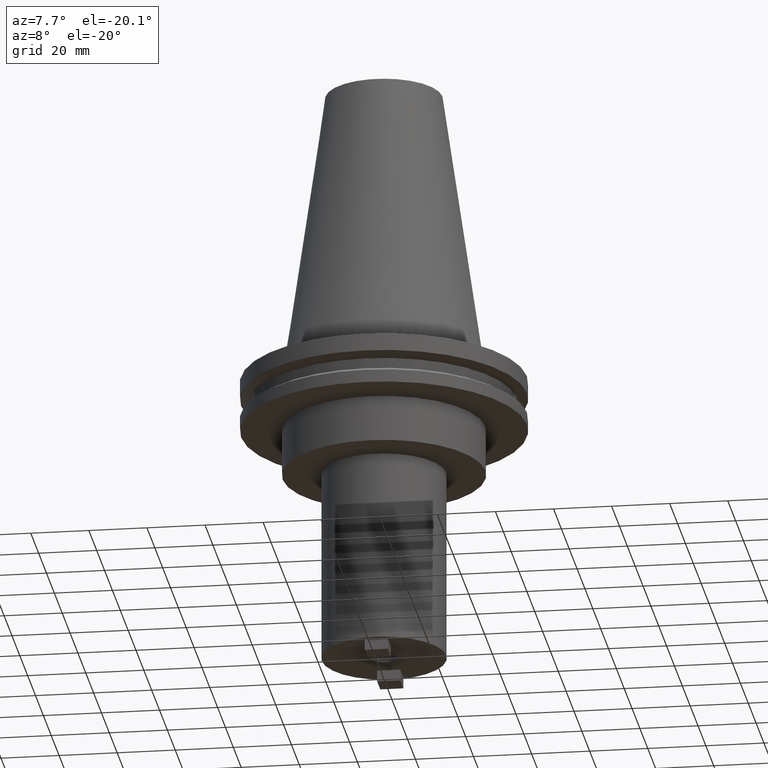
[diagram: clean part render]
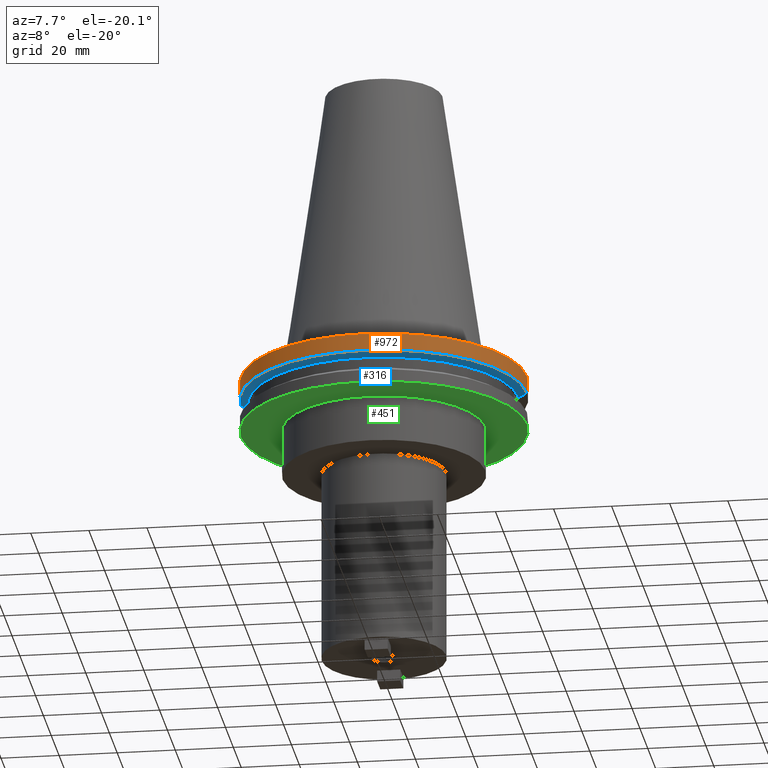
[diagram: same view with three faces highlighted in distinct colors, each labeled with its STEP entity id]
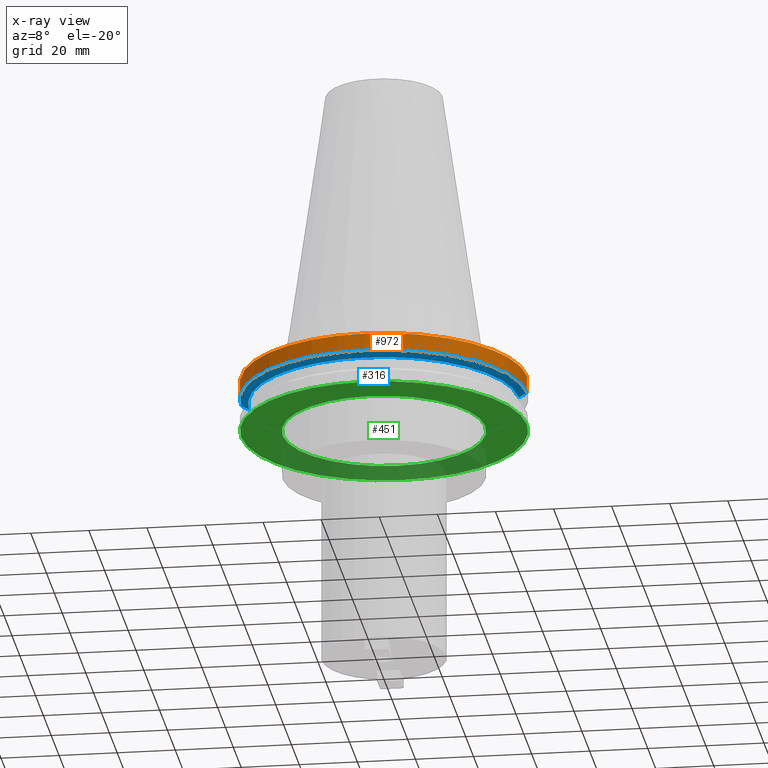
[diagram: x-ray of the same camera — body ghosted, the three highlighted faces saturated]
A machine part, auxiliary view with three faces highlighted in distinct colors.
The next image is the same camera in x-ray (body ghosted, the three faces saturated) — at least one of them is partly hidden behind the body in this view.
Their STEP definitions:

[orange] entity #972 — the highlighted cylindrical surface (partial cylindrical patch) has radius 49.215 mm, axis along (-0, -0, 1).
#8 = VERTEX_POINT ( 'NONE', #622 ) ;
#49 = ORIENTED_EDGE ( 'NONE', *, *, #811, .T. ) ;
#67 = ORIENTED_EDGE ( 'NONE', *, *, #574, .F. ) ;
#104 = AXIS2_PLACEMENT_3D ( 'NONE', #1079, #330, #313 ) ;
#135 = EDGE_CURVE ( 'NONE', #969, #181, #384, .T. ) ;
#175 = CIRCLE ( 'NONE', #833, 49.21500000000000341 ) ;
#181 = VERTEX_POINT ( 'NONE', #332 ) ;
#188 = ORIENTED_EDGE ( 'NONE', *, *, #711, .T. ) ;
#196 = DIRECTION ( 'NONE',  ( -0.000000000000000000, -0.000000000000000000, 1.000000000000000000 ) ) ;
#200 = LINE ( 'NONE', #542, #1037 ) ;
#205 = CARTESIAN_POINT ( 'NONE',  ( 0.000000000000000000, 0.000000000000000000, -7.602389855251287187 ) ) ;
#249 = EDGE_LOOP ( 'NONE', ( #67, #188, #49, #396 ) ) ;
#297 = DIRECTION ( 'NONE',  ( 1.000000000000000000, 0.000000000000000000, 0.000000000000000000 ) ) ;
#313 = DIRECTION ( 'NONE',  ( 1.000000000000000000, 0.000000000000000000, 0.000000000000000000 ) ) ;
#320 = DIRECTION ( 'NONE',  ( 1.000000000000000000, 0.000000000000000000, 0.000000000000000000 ) ) ;
#326 = CARTESIAN_POINT ( 'NONE',  ( -49.21500000000000341, 6.027099222003699404E-15, -7.602389855251287187 ) ) ;
#330 = DIRECTION ( 'NONE',  ( -0.000000000000000000, -0.000000000000000000, 1.000000000000000000 ) ) ;
#332 = CARTESIAN_POINT ( 'NONE',  ( 49.21499999999999631, 0.000000000000000000, -1.499999999999987566 ) ) ;
#372 = DIRECTION ( 'NONE',  ( -0.000000000000000000, -0.000000000000000000, 1.000000000000000000 ) ) ;
#384 = CIRCLE ( 'NONE', #743, 49.21499999999999631 ) ;
#396 = ORIENTED_EDGE ( 'NONE', *, *, #135, .F. ) ;
#421 = DIRECTION ( 'NONE',  ( -0.000000000000000000, -0.000000000000000000, 1.000000000000000000 ) ) ;
#489 = FACE_OUTER_BOUND ( 'NONE', #249, .T. ) ;
#542 = CARTESIAN_POINT ( 'NONE',  ( 49.21499999999999631, 0.000000000000000000, 101.5999999999999943 ) ) ;
#574 = EDGE_CURVE ( 'NONE', #912, #969, #1069, .T. ) ;
#622 = CARTESIAN_POINT ( 'NONE',  ( 49.21500000000000341, 0.000000000000000000, -7.602389855251287187 ) ) ;
#637 = VECTOR ( 'NONE', #748, 1000.000000000000000 ) ;
#711 = EDGE_CURVE ( 'NONE', #912, #8, #175, .T. ) ;
#743 = AXIS2_PLACEMENT_3D ( 'NONE', #1068, #421, #320 ) ;
#748 = DIRECTION ( 'NONE',  ( -0.000000000000000000, -0.000000000000000000, 1.000000000000000000 ) ) ;
#761 = CARTESIAN_POINT ( 'NONE',  ( -49.21499999999999631, 6.027099222003697826E-15, -1.499999999999987566 ) ) ;
#811 = EDGE_CURVE ( 'NONE', #8, #181, #200, .T. ) ;
#832 = CYLINDRICAL_SURFACE ( 'NONE', #104, 49.21499999999999631 ) ;
#833 = AXIS2_PLACEMENT_3D ( 'NONE', #205, #372, #297 ) ;
#912 = VERTEX_POINT ( 'NONE', #326 ) ;
#969 = VERTEX_POINT ( 'NONE', #761 ) ;
#972 = ADVANCED_FACE ( 'NONE', ( #489 ), #832, .T. ) ;
#977 = CARTESIAN_POINT ( 'NONE',  ( -49.21499999999999631, 6.027099222003697826E-15, 101.5999999999999943 ) ) ;
#1037 = VECTOR ( 'NONE', #196, 1000.000000000000000 ) ;
#1068 = CARTESIAN_POINT ( 'NONE',  ( 0.000000000000000000, 0.000000000000000000, -1.499999999999987566 ) ) ;
#1069 = LINE ( 'NONE', #977, #637 ) ;
#1079 = CARTESIAN_POINT ( 'NONE',  ( 0.000000000000000000, 0.000000000000000000, 101.5999999999999943 ) ) ;

[blue] entity #316 — the highlighted conical surface has half-angle 60 deg.
#2 = DIRECTION ( 'NONE',  ( 0.8660254037844273833, 0.000000000000000000, 0.5000000000000195399 ) ) ;
#8 = VERTEX_POINT ( 'NONE', #622 ) ;
#36 = DIRECTION ( 'NONE',  ( -0.000000000000000000, -0.000000000000000000, 1.000000000000000000 ) ) ;
#89 = EDGE_CURVE ( 'NONE', #595, #912, #481, .T. ) ;
#110 = CARTESIAN_POINT ( 'NONE',  ( -46.43919780457007818, 5.857130358318727293E-15, -9.204999999999991189 ) ) ;
#127 = CARTESIAN_POINT ( 'NONE',  ( 0.000000000000000000, 0.000000000000000000, -9.204999999999991189 ) ) ;
#129 = ORIENTED_EDGE ( 'NONE', *, *, #150, .T. ) ;
#150 = EDGE_CURVE ( 'NONE', #233, #8, #753, .T. ) ;
#155 = DIRECTION ( 'NONE',  ( -0.8660254037844273833, 1.060575238724893110E-16, 0.5000000000000195399 ) ) ;
#175 = CIRCLE ( 'NONE', #833, 49.21500000000000341 ) ;
#177 = CARTESIAN_POINT ( 'NONE',  ( 46.43919780457007818, 0.000000000000000000, -9.204999999999991189 ) ) ;
#205 = CARTESIAN_POINT ( 'NONE',  ( 0.000000000000000000, 0.000000000000000000, -7.602389855251287187 ) ) ;
#208 = DIRECTION ( 'NONE',  ( 1.000000000000000000, 0.000000000000000000, 0.000000000000000000 ) ) ;
#233 = VERTEX_POINT ( 'NONE', #177 ) ;
#296 = VECTOR ( 'NONE', #2, 1000.000000000000000 ) ;
#297 = DIRECTION ( 'NONE',  ( 1.000000000000000000, 0.000000000000000000, 0.000000000000000000 ) ) ;
#298 = CONICAL_SURFACE ( 'NONE', #586, 46.43919780457007818, 1.047197551196575205 ) ;
#316 = ADVANCED_FACE ( 'NONE', ( #445 ), #298, .T. ) ;
#326 = CARTESIAN_POINT ( 'NONE',  ( -49.21500000000000341, 6.027099222003699404E-15, -7.602389855251287187 ) ) ;
#334 = EDGE_LOOP ( 'NONE', ( #419, #822, #129, #696 ) ) ;
#358 = CARTESIAN_POINT ( 'NONE',  ( 0.000000000000000000, 0.000000000000000000, -9.204999999999991189 ) ) ;
#372 = DIRECTION ( 'NONE',  ( -0.000000000000000000, -0.000000000000000000, 1.000000000000000000 ) ) ;
#419 = ORIENTED_EDGE ( 'NONE', *, *, #89, .F. ) ;
#445 = FACE_OUTER_BOUND ( 'NONE', #334, .T. ) ;
#455 = CIRCLE ( 'NONE', #930, 46.43919780457007818 ) ;
#481 = LINE ( 'NONE', #990, #619 ) ;
#580 = EDGE_CURVE ( 'NONE', #595, #233, #455, .T. ) ;
#586 = AXIS2_PLACEMENT_3D ( 'NONE', #358, #36, #208 ) ;
#595 = VERTEX_POINT ( 'NONE', #110 ) ;
#619 = VECTOR ( 'NONE', #155, 1000.000000000000000 ) ;
#622 = CARTESIAN_POINT ( 'NONE',  ( 49.21500000000000341, 0.000000000000000000, -7.602389855251287187 ) ) ;
#669 = CARTESIAN_POINT ( 'NONE',  ( 46.43919780457007818, 0.000000000000000000, -9.204999999999991189 ) ) ;
#696 = ORIENTED_EDGE ( 'NONE', *, *, #711, .F. ) ;
#711 = EDGE_CURVE ( 'NONE', #912, #8, #175, .T. ) ;
#753 = LINE ( 'NONE', #669, #296 ) ;
#822 = ORIENTED_EDGE ( 'NONE', *, *, #580, .T. ) ;
#833 = AXIS2_PLACEMENT_3D ( 'NONE', #205, #372, #297 ) ;
#912 = VERTEX_POINT ( 'NONE', #326 ) ;
#930 = AXIS2_PLACEMENT_3D ( 'NONE', #127, #1077, #995 ) ;
#990 = CARTESIAN_POINT ( 'NONE',  ( -46.43919780457007818, 5.687161494633754392E-15, -9.204999999999991189 ) ) ;
#995 = DIRECTION ( 'NONE',  ( 1.000000000000000000, 0.000000000000000000, 0.000000000000000000 ) ) ;
#1077 = DIRECTION ( 'NONE',  ( -0.000000000000000000, -0.000000000000000000, 1.000000000000000000 ) ) ;

[green] entity #451 — the highlighted planar face has unit normal (0, -0, 1).
#19 = DIRECTION ( 'NONE',  ( -0.000000000000000000, -0.000000000000000000, 1.000000000000000000 ) ) ;
#23 = EDGE_LOOP ( 'NONE', ( #796, #221 ) ) ;
#42 = ORIENTED_EDGE ( 'NONE', *, *, #1080, .F. ) ;
#65 = DIRECTION ( 'NONE',  ( 1.000000000000000000, 0.000000000000000000, 0.000000000000000000 ) ) ;
#70 = CARTESIAN_POINT ( 'NONE',  ( 0.000000000000000000, 49.21499999999998920, -19.04999999999999716 ) ) ;
#79 = EDGE_CURVE ( 'NONE', #735, #287, #88, .T. ) ;
#88 = CIRCLE ( 'NONE', #338, 34.92499999999999716 ) ;
#133 = DIRECTION ( 'NONE',  ( 1.000000000000000000, 0.000000000000000000, 0.000000000000000000 ) ) ;
#139 = EDGE_LOOP ( 'NONE', ( #42, #733 ) ) ;
#140 = FACE_OUTER_BOUND ( 'NONE', #139, .T. ) ;
#141 = CIRCLE ( 'NONE', #747, 34.92499999999999716 ) ;
#153 = DIRECTION ( 'NONE',  ( 1.000000000000000000, 0.000000000000000000, 0.000000000000000000 ) ) ;
#166 = CARTESIAN_POINT ( 'NONE',  ( 0.000000000000000000, 0.000000000000000000, -19.04999999999999716 ) ) ;
#174 = CARTESIAN_POINT ( 'NONE',  ( 0.000000000000000000, 0.000000000000000000, -19.04999999999999716 ) ) ;
#221 = ORIENTED_EDGE ( 'NONE', *, *, #79, .T. ) ;
#222 = DIRECTION ( 'NONE',  ( 0.000000000000000000, -0.000000000000000000, 1.000000000000000000 ) ) ;
#235 = PLANE ( 'NONE',  #688 ) ;
#243 = DIRECTION ( 'NONE',  ( -0.000000000000000000, -0.000000000000000000, 1.000000000000000000 ) ) ;
#258 = CARTESIAN_POINT ( 'NONE',  ( -49.21499999999998920, 6.027099222003697037E-15, -19.04999999999999716 ) ) ;
#287 = VERTEX_POINT ( 'NONE', #926 ) ;
#315 = FACE_BOUND ( 'NONE', #23, .T. ) ;
#338 = AXIS2_PLACEMENT_3D ( 'NONE', #399, #243, #65 ) ;
#351 = DIRECTION ( 'NONE',  ( 1.000000000000000000, 0.000000000000000000, 0.000000000000000000 ) ) ;
#369 = CIRCLE ( 'NONE', #641, 49.21499999999998920 ) ;
#399 = CARTESIAN_POINT ( 'NONE',  ( 0.000000000000000000, 0.000000000000000000, -19.04999999999999716 ) ) ;
#442 = DIRECTION ( 'NONE',  ( -0.000000000000000000, -0.000000000000000000, 1.000000000000000000 ) ) ;
#451 = ADVANCED_FACE ( 'NONE', ( #140, #315 ), #235, .F. ) ;
#478 = CARTESIAN_POINT ( 'NONE',  ( 49.21499999999998920, 0.000000000000000000, -19.04999999999999716 ) ) ;
#483 = VERTEX_POINT ( 'NONE', #478 ) ;
#578 = DIRECTION ( 'NONE',  ( -0.000000000000000000, -0.000000000000000000, 1.000000000000000000 ) ) ;
#641 = AXIS2_PLACEMENT_3D ( 'NONE', #174, #19, #351 ) ;
#688 = AXIS2_PLACEMENT_3D ( 'NONE', #70, #222, #133 ) ;
#709 = CARTESIAN_POINT ( 'NONE',  ( -34.92499999999999716, 4.277078946022130887E-15, -19.04999999999999716 ) ) ;
#733 = ORIENTED_EDGE ( 'NONE', *, *, #961, .F. ) ;
#735 = VERTEX_POINT ( 'NONE', #709 ) ;
#747 = AXIS2_PLACEMENT_3D ( 'NONE', #1022, #442, #770 ) ;
#770 = DIRECTION ( 'NONE',  ( 1.000000000000000000, 0.000000000000000000, 0.000000000000000000 ) ) ;
#777 = AXIS2_PLACEMENT_3D ( 'NONE', #166, #578, #153 ) ;
#796 = ORIENTED_EDGE ( 'NONE', *, *, #1004, .T. ) ;
#849 = CIRCLE ( 'NONE', #777, 49.21499999999998920 ) ;
#926 = CARTESIAN_POINT ( 'NONE',  ( 34.92499999999999716, 0.000000000000000000, -19.04999999999999716 ) ) ;
#961 = EDGE_CURVE ( 'NONE', #1066, #483, #849, .T. ) ;
#1004 = EDGE_CURVE ( 'NONE', #287, #735, #141, .T. ) ;
#1022 = CARTESIAN_POINT ( 'NONE',  ( 0.000000000000000000, 0.000000000000000000, -19.04999999999999716 ) ) ;
#1066 = VERTEX_POINT ( 'NONE', #258 ) ;
#1080 = EDGE_CURVE ( 'NONE', #483, #1066, #369, .T. ) ;